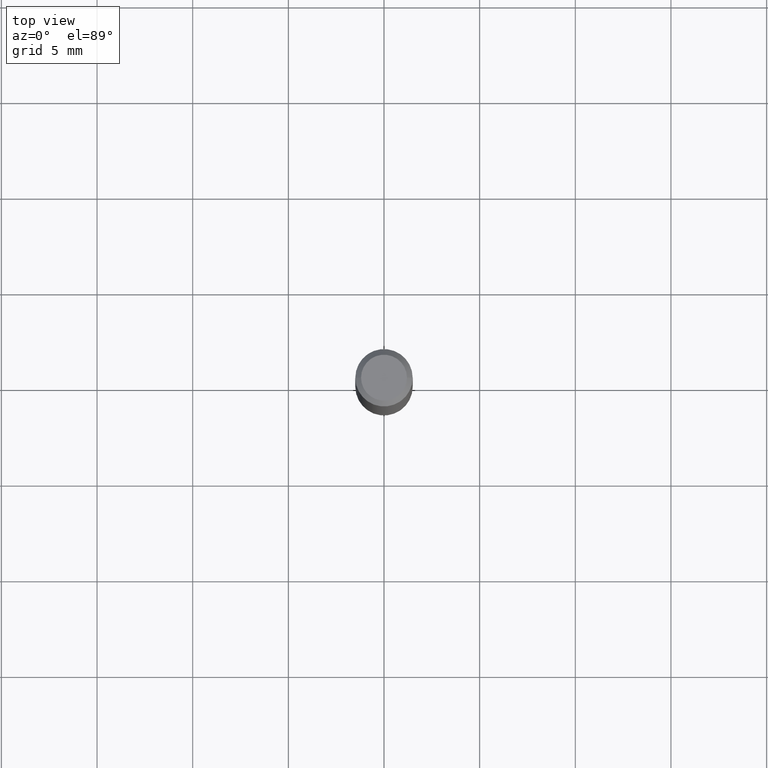
[diagram: clean part render]
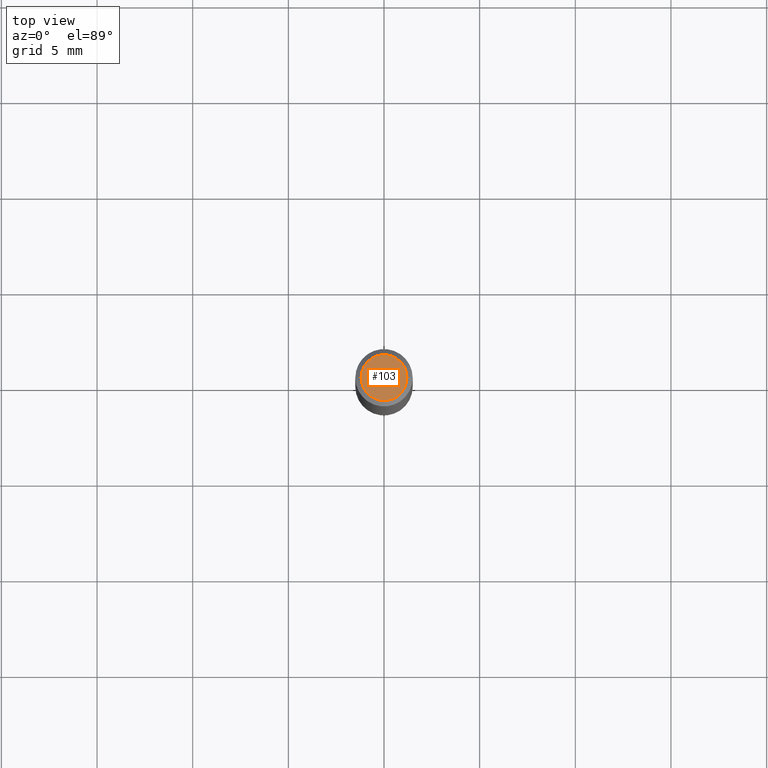
[diagram: same view with one face highlighted and labeled with its STEP entity id]
A machine part, top view. The second image highlights one B-rep face of the part: STEP entity #103.
In plain terms, the highlighted planar face has unit normal (0, -0, -1).
Its self-contained STEP definition (entity closure, byte-faithful):
#23 = AXIS2_PLACEMENT_3D ( 'NONE', #49, #174, #237 ) ;
#31 = FACE_OUTER_BOUND ( 'NONE', #361, .T. ) ;
#48 = VERTEX_POINT ( 'NONE', #120 ) ;
#49 = CARTESIAN_POINT ( 'NONE',  ( 8.265746106709734507E-48, -1.180129479067563789E-33, -3.380025165646692144E-19 ) ) ;
#68 = DIRECTION ( 'NONE',  ( -2.445468806185136597E-29, 3.491481338843145583E-15, 1.000000000000000000 ) ) ;
#103 = ADVANCED_FACE ( 'NONE', ( #31 ), #192, .F. ) ;
#113 = VERTEX_POINT ( 'NONE', #389 ) ;
#117 = CIRCLE ( 'NONE', #23, 0.04724000000000000421 ) ;
#120 = CARTESIAN_POINT ( 'NONE',  ( -0.04724000000000000421, 3.504923541997677355E-16, -3.380025165670481712E-19 ) ) ;
#128 = EDGE_CURVE ( 'NONE', #113, #48, #117, .T. ) ;
#138 = AXIS2_PLACEMENT_3D ( 'NONE', #412, #68, #190 ) ;
#174 = DIRECTION ( 'NONE',  ( -2.445468806185136597E-29, 3.491481338843145583E-15, 1.000000000000000000 ) ) ;
#190 = DIRECTION ( 'NONE',  ( 1.000000000000000000, -6.982962677686266711E-15, 4.876185090822587894E-29 ) ) ;
#192 = PLANE ( 'NONE',  #258 ) ;
#237 = DIRECTION ( 'NONE',  ( 1.000000000000000000, -6.982962677686266711E-15, 4.876185090822587894E-29 ) ) ;
#251 = EDGE_CURVE ( 'NONE', #48, #113, #368, .T. ) ;
#258 = AXIS2_PLACEMENT_3D ( 'NONE', #483, #433, #394 ) ;
#306 = ORIENTED_EDGE ( 'NONE', *, *, #128, .T. ) ;
#361 = EDGE_LOOP ( 'NONE', ( #450, #306 ) ) ;
#368 = CIRCLE ( 'NONE', #138, 0.04724000000000000421 ) ;
#389 = CARTESIAN_POINT ( 'NONE',  ( 0.04724000000000000421, -3.852183633974369345E-16, -3.380025165621689721E-19 ) ) ;
#394 = DIRECTION ( 'NONE',  ( -1.000000000000000000, 6.982962677686265922E-15, -4.876176775795935793E-29 ) ) ;
#412 = CARTESIAN_POINT ( 'NONE',  ( 8.265746106709734507E-48, -1.180129479067563789E-33, -3.380025165646692144E-19 ) ) ;
#433 = DIRECTION ( 'NONE',  ( 2.438088387897960049E-29, -3.491481338843145188E-15, -1.000000000000000000 ) ) ;
#450 = ORIENTED_EDGE ( 'NONE', *, *, #251, .T. ) ;
#483 = CARTESIAN_POINT ( 'NONE',  ( 4.132873053354867254E-48, -5.900647395337818946E-34, -1.690012582823346072E-19 ) ) ;